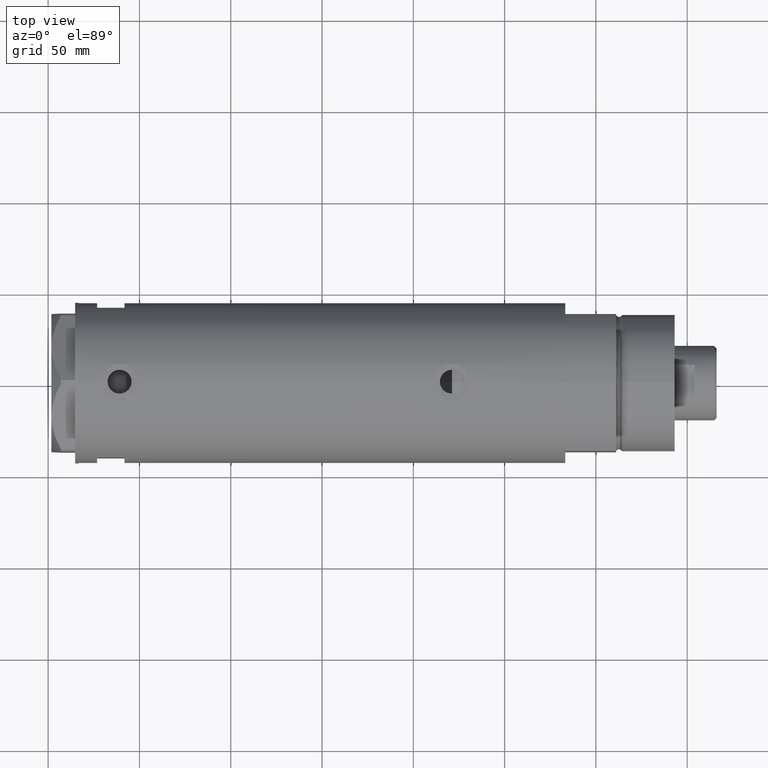
[diagram: clean part render]
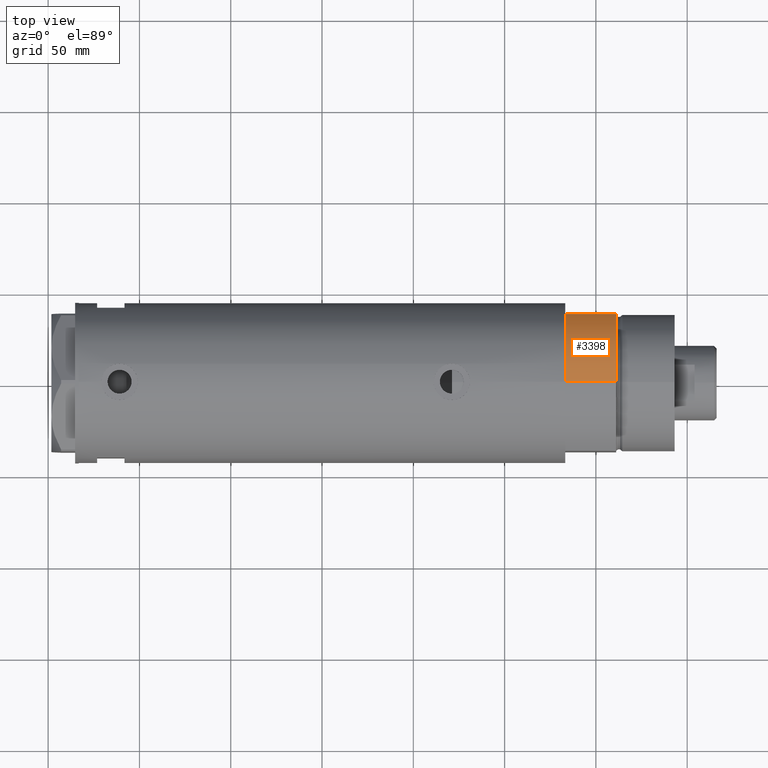
[diagram: same view with one face highlighted and labeled with its STEP entity id]
A machine part, top view. The second image highlights one B-rep face of the part: STEP entity #3398.
In plain terms, the highlighted cylindrical surface (partial cylindrical patch) has radius 44 mm, axis along (-1, -0, 0).
Its self-contained STEP definition (entity closure, byte-faithful):
#55 = CARTESIAN_POINT ( 'NONE',  ( 0.000000000000000000, 0.000000000000000000, 0.000000000000000000 ) ) ;
#88 = DIRECTION ( 'NONE',  ( -1.000000000000000000, 0.000000000000000000, 0.000000000000000000 ) ) ;
#263 = ORIENTED_EDGE ( 'NONE', *, *, #1000, .F. ) ;
#369 = VECTOR ( 'NONE', #3269, 1000.000000000000000 ) ;
#464 = DIRECTION ( 'NONE',  ( 1.000000000000000000, 0.000000000000000000, 0.000000000000000000 ) ) ;
#495 = CARTESIAN_POINT ( 'NONE',  ( -23.01629857296780557, 37.50000000000000000, 0.000000000000000000 ) ) ;
#588 = CARTESIAN_POINT ( 'NONE',  ( -44.00000000000000000, 0.000000000000000000, 27.89999999999999858 ) ) ;
#997 = CYLINDRICAL_SURFACE ( 'NONE', #2977, 44.00000000000000000 ) ;
#1000 = EDGE_CURVE ( 'NONE', #3912, #1790, #1792, .T. ) ;
#1118 = EDGE_CURVE ( 'NONE', #1740, #1790, #2003, .T. ) ;
#1424 = AXIS2_PLACEMENT_3D ( 'NONE', #55, #4592, #464 ) ;
#1740 = VERTEX_POINT ( 'NONE', #5855 ) ;
#1790 = VERTEX_POINT ( 'NONE', #5574 ) ;
#1792 = LINE ( 'NONE', #5459, #3906 ) ;
#2003 = CIRCLE ( 'NONE', #1424, 44.00000000000000000 ) ;
#2267 = DIRECTION ( 'NONE',  ( -0.000000000000000000, -0.000000000000000000, -1.000000000000000000 ) ) ;
#2327 = ORIENTED_EDGE ( 'NONE', *, *, #5107, .F. ) ;
#2672 = VERTEX_POINT ( 'NONE', #3084 ) ;
#2846 = CARTESIAN_POINT ( 'NONE',  ( 0.000000000000000000, 0.000000000000000000, 27.89999999999999858 ) ) ;
#2968 = AXIS2_PLACEMENT_3D ( 'NONE', #5798, #3538, #3571 ) ;
#2977 = AXIS2_PLACEMENT_3D ( 'NONE', #2846, #3799, #88 ) ;
#3084 = CARTESIAN_POINT ( 'NONE',  ( -23.01629857296780557, 37.50000000000000000, 27.89999999999999858 ) ) ;
#3269 = DIRECTION ( 'NONE',  ( -0.000000000000000000, -0.000000000000000000, 1.000000000000000000 ) ) ;
#3334 = EDGE_CURVE ( 'NONE', #1740, #2672, #4623, .T. ) ;
#3398 = ADVANCED_FACE ( 'NONE', ( #5140 ), #997, .T. ) ;
#3538 = DIRECTION ( 'NONE',  ( 0.000000000000000000, 0.000000000000000000, 1.000000000000000000 ) ) ;
#3571 = DIRECTION ( 'NONE',  ( 1.000000000000000000, 0.000000000000000000, 0.000000000000000000 ) ) ;
#3634 = ORIENTED_EDGE ( 'NONE', *, *, #3334, .F. ) ;
#3799 = DIRECTION ( 'NONE',  ( -0.000000000000000000, -0.000000000000000000, -1.000000000000000000 ) ) ;
#3906 = VECTOR ( 'NONE', #2267, 1000.000000000000000 ) ;
#3912 = VERTEX_POINT ( 'NONE', #588 ) ;
#4342 = ORIENTED_EDGE ( 'NONE', *, *, #1118, .T. ) ;
#4592 = DIRECTION ( 'NONE',  ( 0.000000000000000000, 0.000000000000000000, 1.000000000000000000 ) ) ;
#4623 = LINE ( 'NONE', #495, #369 ) ;
#5107 = EDGE_CURVE ( 'NONE', #2672, #3912, #5779, .T. ) ;
#5140 = FACE_OUTER_BOUND ( 'NONE', #5353, .T. ) ;
#5353 = EDGE_LOOP ( 'NONE', ( #263, #2327, #3634, #4342 ) ) ;
#5459 = CARTESIAN_POINT ( 'NONE',  ( -44.00000000000000000, 0.000000000000000000, 27.89999999999999858 ) ) ;
#5574 = CARTESIAN_POINT ( 'NONE',  ( -44.00000000000000000, 0.000000000000000000, 0.000000000000000000 ) ) ;
#5779 = CIRCLE ( 'NONE', #2968, 44.00000000000000000 ) ;
#5798 = CARTESIAN_POINT ( 'NONE',  ( 0.000000000000000000, 0.000000000000000000, 27.89999999999999858 ) ) ;
#5855 = CARTESIAN_POINT ( 'NONE',  ( -23.01629857296780557, 37.50000000000000000, 0.000000000000000000 ) ) ;